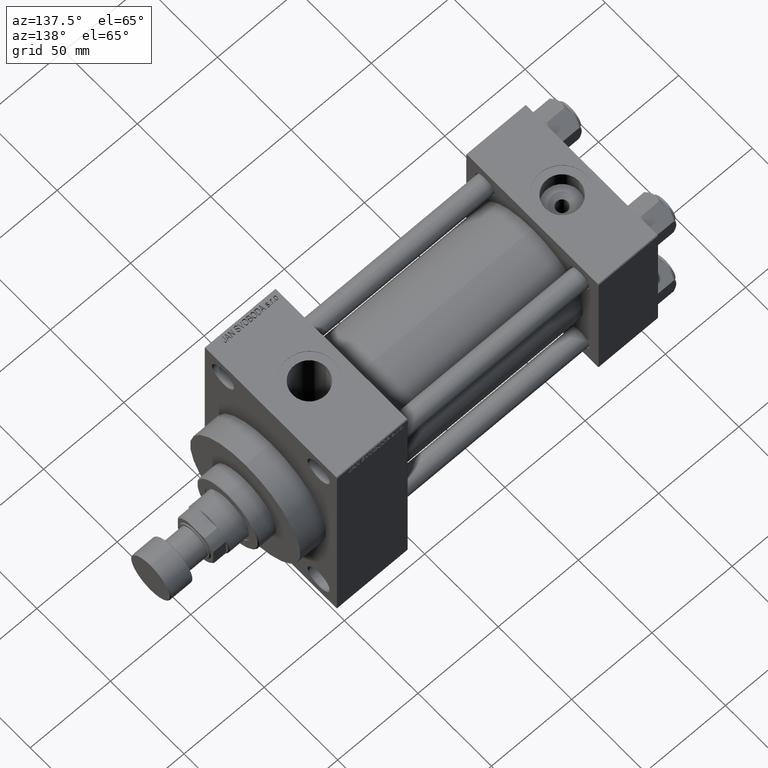
[diagram: clean part render]
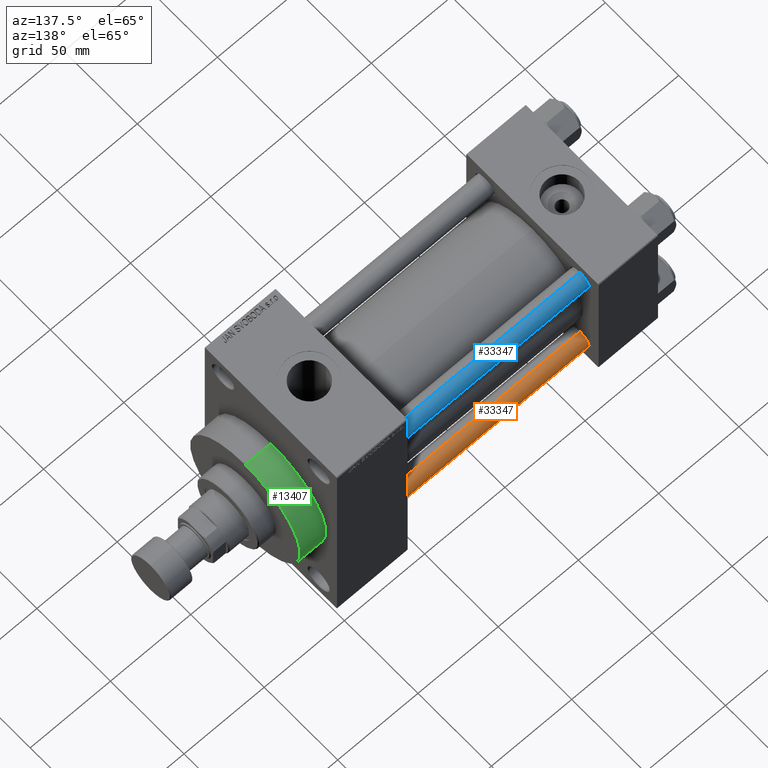
[diagram: same view with three faces highlighted in distinct colors, each labeled with its STEP entity id]
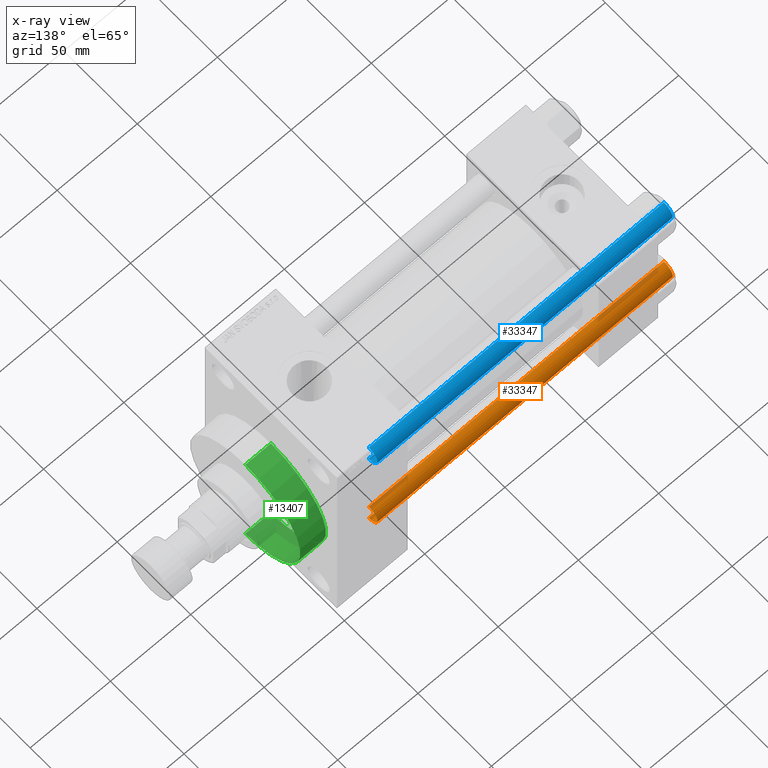
[diagram: x-ray of the same camera — body ghosted, the three highlighted faces saturated]
A machine part, auxiliary view with three faces highlighted in distinct colors.
The next image is the same camera in x-ray (body ghosted, the three faces saturated) — at least one of them is partly hidden behind the body in this view.
Their STEP definitions:

[orange] entity #33347 — the highlighted cylindrical surface (edge-blend (fillet) strip) has radius 6 mm, axis along (-1, -0, 0).
#2480 = VERTEX_POINT ( 'NONE', #30957 ) ;
#3286 = FACE_OUTER_BOUND ( 'NONE', #36090, .T. ) ;
#3484 = EDGE_CURVE ( 'NONE', #29608, #33283, #21498, .T. ) ;
#3753 = DIRECTION ( 'NONE',  ( -1.000000000000000000, 0.000000000000000000, 0.000000000000000000 ) ) ;
#5520 = DIRECTION ( 'NONE',  ( 1.000000000000000000, 0.000000000000000000, 0.000000000000000000 ) ) ;
#7381 = DIRECTION ( 'NONE',  ( -0.000000000000000000, -0.000000000000000000, -1.000000000000000000 ) ) ;
#9146 = DIRECTION ( 'NONE',  ( -0.000000000000000000, -0.000000000000000000, 1.000000000000000000 ) ) ;
#12079 = LINE ( 'NONE', #12323, #47620 ) ;
#12323 = CARTESIAN_POINT ( 'NONE',  ( -6.000000000000000888, 0.000000000000000000, 185.0000000000000000 ) ) ;
#12954 = ORIENTED_EDGE ( 'NONE', *, *, #3484, .T. ) ;
#13630 = ORIENTED_EDGE ( 'NONE', *, *, #30979, .T. ) ;
#15265 = AXIS2_PLACEMENT_3D ( 'NONE', #40399, #7381, #3753 ) ;
#15782 = CARTESIAN_POINT ( 'NONE',  ( -6.000000000000000888, 0.000000000000000000, 0.5000000000000281997 ) ) ;
#15890 = ORIENTED_EDGE ( 'NONE', *, *, #35015, .F. ) ;
#16677 = EDGE_CURVE ( 'NONE', #33283, #35786, #24947, .T. ) ;
#17649 = DIRECTION ( 'NONE',  ( 0.000000000000000000, 0.000000000000000000, -1.000000000000000000 ) ) ;
#21498 = LINE ( 'NONE', #28944, #45426 ) ;
#22450 = DIRECTION ( 'NONE',  ( -0.000000000000000000, -0.000000000000000000, -1.000000000000000000 ) ) ;
#24947 = CIRCLE ( 'NONE', #47250, 6.000000000000000888 ) ;
#25713 = CYLINDRICAL_SURFACE ( 'NONE', #15265, 6.000000000000000888 ) ;
#27562 = CARTESIAN_POINT ( 'NONE',  ( 6.000000000000000888, 7.347880794884120722E-16, 184.5000000000000000 ) ) ;
#28396 = CIRCLE ( 'NONE', #38388, 6.000000000000000888 ) ;
#28944 = CARTESIAN_POINT ( 'NONE',  ( 6.000000000000000888, 7.347880794884120722E-16, 185.0000000000000000 ) ) ;
#29608 = VERTEX_POINT ( 'NONE', #27562 ) ;
#30957 = CARTESIAN_POINT ( 'NONE',  ( -6.000000000000000888, 0.000000000000000000, 184.5000000000000000 ) ) ;
#30979 = EDGE_CURVE ( 'NONE', #2480, #29608, #28396, .T. ) ;
#33283 = VERTEX_POINT ( 'NONE', #42403 ) ;
#33347 = ADVANCED_FACE ( 'NONE', ( #3286 ), #25713, .T. ) ;
#35015 = EDGE_CURVE ( 'NONE', #2480, #35786, #12079, .T. ) ;
#35786 = VERTEX_POINT ( 'NONE', #15782 ) ;
#36090 = EDGE_LOOP ( 'NONE', ( #13630, #12954, #44257, #15890 ) ) ;
#38388 = AXIS2_PLACEMENT_3D ( 'NONE', #44111, #17649, #40495 ) ;
#40399 = CARTESIAN_POINT ( 'NONE',  ( 0.000000000000000000, 0.000000000000000000, 185.0000000000000000 ) ) ;
#40495 = DIRECTION ( 'NONE',  ( 1.000000000000000000, 0.000000000000000000, 0.000000000000000000 ) ) ;
#42403 = CARTESIAN_POINT ( 'NONE',  ( 6.000000000000000888, 7.347880794884120722E-16, 0.5000000000000281997 ) ) ;
#42926 = DIRECTION ( 'NONE',  ( -0.000000000000000000, -0.000000000000000000, -1.000000000000000000 ) ) ;
#44111 = CARTESIAN_POINT ( 'NONE',  ( 0.000000000000000000, 0.000000000000000000, 184.5000000000000000 ) ) ;
#44257 = ORIENTED_EDGE ( 'NONE', *, *, #16677, .T. ) ;
#45426 = VECTOR ( 'NONE', #42926, 1000.000000000000000 ) ;
#45776 = CARTESIAN_POINT ( 'NONE',  ( 0.000000000000000000, 0.000000000000000000, 0.5000000000000281997 ) ) ;
#47250 = AXIS2_PLACEMENT_3D ( 'NONE', #45776, #9146, #5520 ) ;
#47620 = VECTOR ( 'NONE', #22450, 1000.000000000000000 ) ;

[blue] entity #33347 — the highlighted cylindrical surface (edge-blend (fillet) strip) has radius 6 mm, axis along (1, -0, -0).
#2480 = VERTEX_POINT ( 'NONE', #30957 ) ;
#3286 = FACE_OUTER_BOUND ( 'NONE', #36090, .T. ) ;
#3484 = EDGE_CURVE ( 'NONE', #29608, #33283, #21498, .T. ) ;
#3753 = DIRECTION ( 'NONE',  ( -1.000000000000000000, 0.000000000000000000, 0.000000000000000000 ) ) ;
#5520 = DIRECTION ( 'NONE',  ( 1.000000000000000000, 0.000000000000000000, 0.000000000000000000 ) ) ;
#7381 = DIRECTION ( 'NONE',  ( -0.000000000000000000, -0.000000000000000000, -1.000000000000000000 ) ) ;
#9146 = DIRECTION ( 'NONE',  ( -0.000000000000000000, -0.000000000000000000, 1.000000000000000000 ) ) ;
#12079 = LINE ( 'NONE', #12323, #47620 ) ;
#12323 = CARTESIAN_POINT ( 'NONE',  ( -6.000000000000000888, 0.000000000000000000, 185.0000000000000000 ) ) ;
#12954 = ORIENTED_EDGE ( 'NONE', *, *, #3484, .T. ) ;
#13630 = ORIENTED_EDGE ( 'NONE', *, *, #30979, .T. ) ;
#15265 = AXIS2_PLACEMENT_3D ( 'NONE', #40399, #7381, #3753 ) ;
#15782 = CARTESIAN_POINT ( 'NONE',  ( -6.000000000000000888, 0.000000000000000000, 0.5000000000000281997 ) ) ;
#15890 = ORIENTED_EDGE ( 'NONE', *, *, #35015, .F. ) ;
#16677 = EDGE_CURVE ( 'NONE', #33283, #35786, #24947, .T. ) ;
#17649 = DIRECTION ( 'NONE',  ( 0.000000000000000000, 0.000000000000000000, -1.000000000000000000 ) ) ;
#21498 = LINE ( 'NONE', #28944, #45426 ) ;
#22450 = DIRECTION ( 'NONE',  ( -0.000000000000000000, -0.000000000000000000, -1.000000000000000000 ) ) ;
#24947 = CIRCLE ( 'NONE', #47250, 6.000000000000000888 ) ;
#25713 = CYLINDRICAL_SURFACE ( 'NONE', #15265, 6.000000000000000888 ) ;
#27562 = CARTESIAN_POINT ( 'NONE',  ( 6.000000000000000888, 7.347880794884120722E-16, 184.5000000000000000 ) ) ;
#28396 = CIRCLE ( 'NONE', #38388, 6.000000000000000888 ) ;
#28944 = CARTESIAN_POINT ( 'NONE',  ( 6.000000000000000888, 7.347880794884120722E-16, 185.0000000000000000 ) ) ;
#29608 = VERTEX_POINT ( 'NONE', #27562 ) ;
#30957 = CARTESIAN_POINT ( 'NONE',  ( -6.000000000000000888, 0.000000000000000000, 184.5000000000000000 ) ) ;
#30979 = EDGE_CURVE ( 'NONE', #2480, #29608, #28396, .T. ) ;
#33283 = VERTEX_POINT ( 'NONE', #42403 ) ;
#33347 = ADVANCED_FACE ( 'NONE', ( #3286 ), #25713, .T. ) ;
#35015 = EDGE_CURVE ( 'NONE', #2480, #35786, #12079, .T. ) ;
#35786 = VERTEX_POINT ( 'NONE', #15782 ) ;
#36090 = EDGE_LOOP ( 'NONE', ( #13630, #12954, #44257, #15890 ) ) ;
#38388 = AXIS2_PLACEMENT_3D ( 'NONE', #44111, #17649, #40495 ) ;
#40399 = CARTESIAN_POINT ( 'NONE',  ( 0.000000000000000000, 0.000000000000000000, 185.0000000000000000 ) ) ;
#40495 = DIRECTION ( 'NONE',  ( 1.000000000000000000, 0.000000000000000000, 0.000000000000000000 ) ) ;
#42403 = CARTESIAN_POINT ( 'NONE',  ( 6.000000000000000888, 7.347880794884120722E-16, 0.5000000000000281997 ) ) ;
#42926 = DIRECTION ( 'NONE',  ( -0.000000000000000000, -0.000000000000000000, -1.000000000000000000 ) ) ;
#44111 = CARTESIAN_POINT ( 'NONE',  ( 0.000000000000000000, 0.000000000000000000, 184.5000000000000000 ) ) ;
#44257 = ORIENTED_EDGE ( 'NONE', *, *, #16677, .T. ) ;
#45426 = VECTOR ( 'NONE', #42926, 1000.000000000000000 ) ;
#45776 = CARTESIAN_POINT ( 'NONE',  ( 0.000000000000000000, 0.000000000000000000, 0.5000000000000281997 ) ) ;
#47250 = AXIS2_PLACEMENT_3D ( 'NONE', #45776, #9146, #5520 ) ;
#47620 = VECTOR ( 'NONE', #22450, 1000.000000000000000 ) ;

[green] entity #13407 — the highlighted cylindrical surface (partial cylindrical patch) has radius 37.5 mm, axis along (-1, -0, -0).
#983 = FACE_OUTER_BOUND ( 'NONE', #39034, .T. ) ;
#4127 = AXIS2_PLACEMENT_3D ( 'NONE', #41483, #12807, #5562 ) ;
#4682 = EDGE_CURVE ( 'NONE', #18485, #14339, #34298, .T. ) ;
#5562 = DIRECTION ( 'NONE',  ( 0.000000000000000000, 0.000000000000000000, 1.000000000000000000 ) ) ;
#6817 = AXIS2_PLACEMENT_3D ( 'NONE', #19046, #15683, #33976 ) ;
#9263 = VECTOR ( 'NONE', #38591, 1000.000000000000000 ) ;
#10672 = ORIENTED_EDGE ( 'NONE', *, *, #27706, .F. ) ;
#12807 = DIRECTION ( 'NONE',  ( -1.000000000000000000, -0.000000000000000000, -0.000000000000000000 ) ) ;
#13334 = VERTEX_POINT ( 'NONE', #23892 ) ;
#13407 = ADVANCED_FACE ( 'NONE', ( #983 ), #41240, .T. ) ;
#14339 = VERTEX_POINT ( 'NONE', #37878 ) ;
#15339 = CIRCLE ( 'NONE', #42237, 37.50000000000000711 ) ;
#15352 = VERTEX_POINT ( 'NONE', #28529 ) ;
#15460 = VECTOR ( 'NONE', #26113, 1000.000000000000000 ) ;
#15683 = DIRECTION ( 'NONE',  ( 1.000000000000000000, 0.000000000000000000, 0.000000000000000000 ) ) ;
#17172 = CARTESIAN_POINT ( 'NONE',  ( 216.0000000000000284, 4.592425496802575156E-15, -37.50000000000000711 ) ) ;
#17194 = CARTESIAN_POINT ( 'NONE',  ( 216.0000000000000284, 0.000000000000000000, 37.50000000000000711 ) ) ;
#17730 = DIRECTION ( 'NONE',  ( 1.000000000000000000, 0.000000000000000000, 0.000000000000000000 ) ) ;
#17967 = DIRECTION ( 'NONE',  ( 0.000000000000000000, 0.000000000000000000, -1.000000000000000000 ) ) ;
#18137 = ORIENTED_EDGE ( 'NONE', *, *, #4682, .F. ) ;
#18370 = CIRCLE ( 'NONE', #6817, 37.50000000000000711 ) ;
#18485 = VERTEX_POINT ( 'NONE', #17194 ) ;
#19046 = CARTESIAN_POINT ( 'NONE',  ( 216.0000000000000284, 0.000000000000000000, 0.000000000000000000 ) ) ;
#23892 = CARTESIAN_POINT ( 'NONE',  ( 200.0000000000000000, 4.592425496802575156E-15, -37.50000000000000711 ) ) ;
#26113 = DIRECTION ( 'NONE',  ( -1.000000000000000000, -0.000000000000000000, -0.000000000000000000 ) ) ;
#27706 = EDGE_CURVE ( 'NONE', #15352, #18485, #18370, .T. ) ;
#28529 = CARTESIAN_POINT ( 'NONE',  ( 216.0000000000000284, 4.592425496802575156E-15, -37.50000000000000711 ) ) ;
#29731 = CARTESIAN_POINT ( 'NONE',  ( 200.0000000000000000, 0.000000000000000000, 0.000000000000000000 ) ) ;
#31167 = ORIENTED_EDGE ( 'NONE', *, *, #35602, .T. ) ;
#33976 = DIRECTION ( 'NONE',  ( 0.000000000000000000, 0.000000000000000000, -1.000000000000000000 ) ) ;
#34298 = LINE ( 'NONE', #44901, #15460 ) ;
#35602 = EDGE_CURVE ( 'NONE', #13334, #14339, #15339, .T. ) ;
#37830 = EDGE_CURVE ( 'NONE', #15352, #13334, #39312, .T. ) ;
#37878 = CARTESIAN_POINT ( 'NONE',  ( 200.0000000000000000, 0.000000000000000000, 37.50000000000000711 ) ) ;
#38591 = DIRECTION ( 'NONE',  ( -1.000000000000000000, -0.000000000000000000, -0.000000000000000000 ) ) ;
#39034 = EDGE_LOOP ( 'NONE', ( #10672, #41015, #31167, #18137 ) ) ;
#39312 = LINE ( 'NONE', #17172, #9263 ) ;
#41015 = ORIENTED_EDGE ( 'NONE', *, *, #37830, .T. ) ;
#41240 = CYLINDRICAL_SURFACE ( 'NONE', #4127, 37.50000000000000711 ) ;
#41483 = CARTESIAN_POINT ( 'NONE',  ( 216.0000000000000284, 0.000000000000000000, 0.000000000000000000 ) ) ;
#42237 = AXIS2_PLACEMENT_3D ( 'NONE', #29731, #17730, #17967 ) ;
#44901 = CARTESIAN_POINT ( 'NONE',  ( 216.0000000000000284, 0.000000000000000000, 37.50000000000000711 ) ) ;